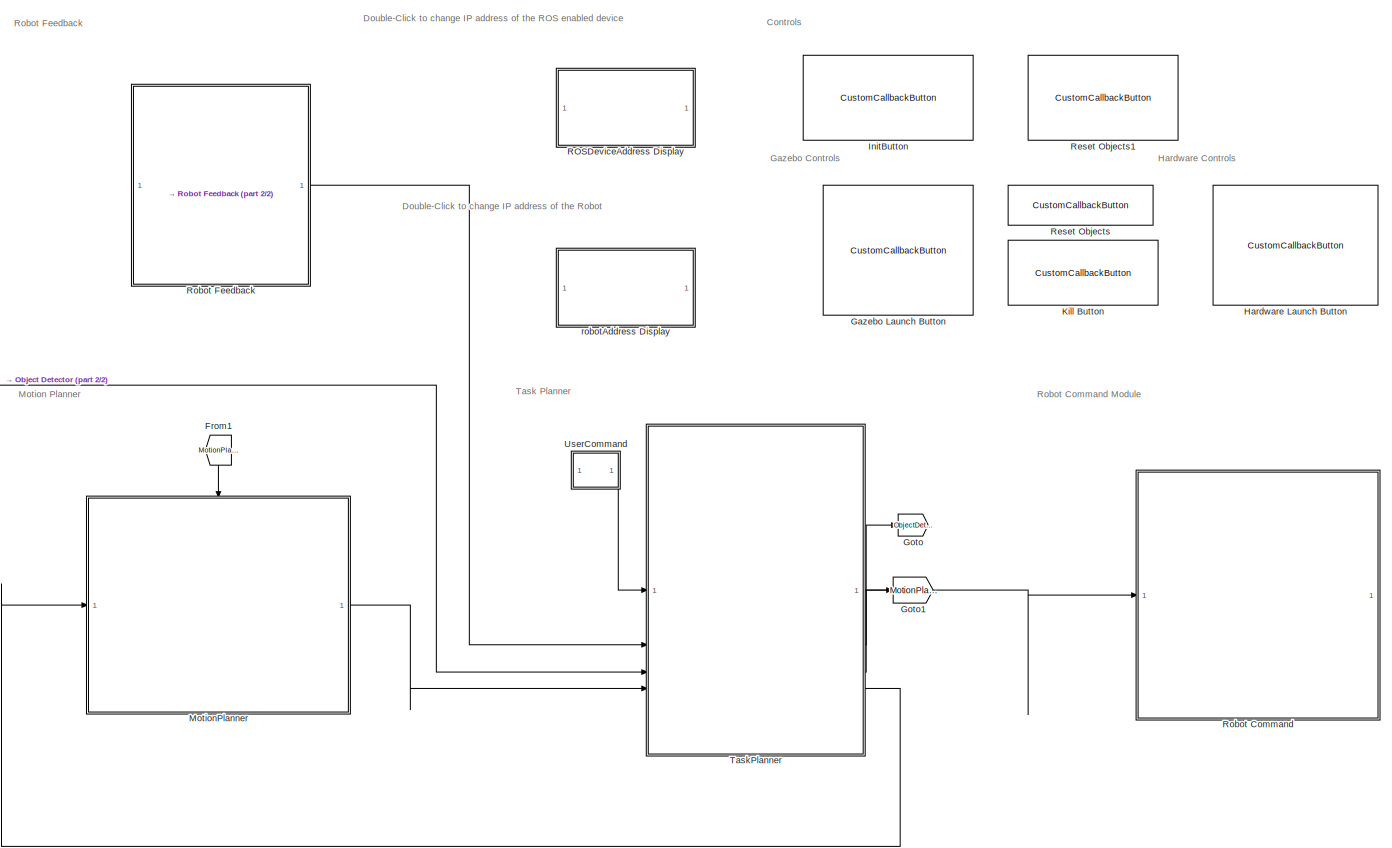
[diagram: root canvas - part 1/2, center side, full height]
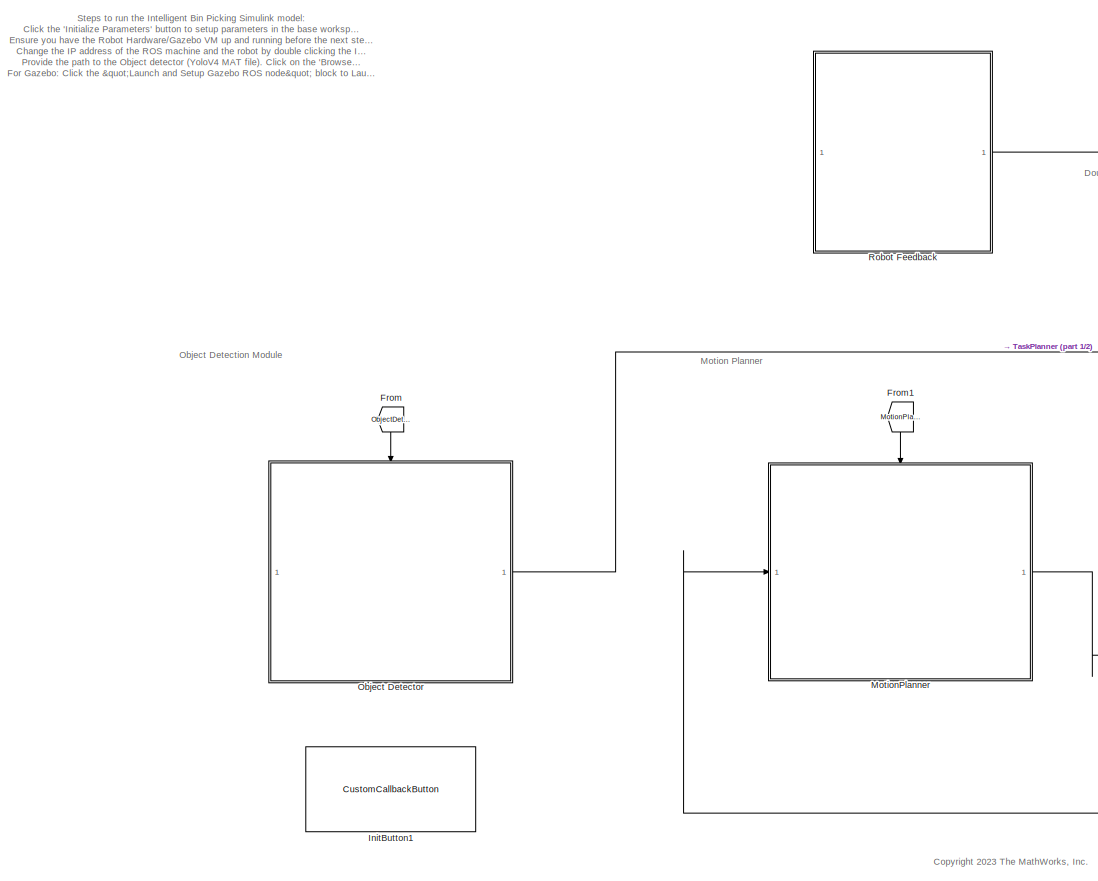
[diagram: root canvas - part 2/2, left side, full height]
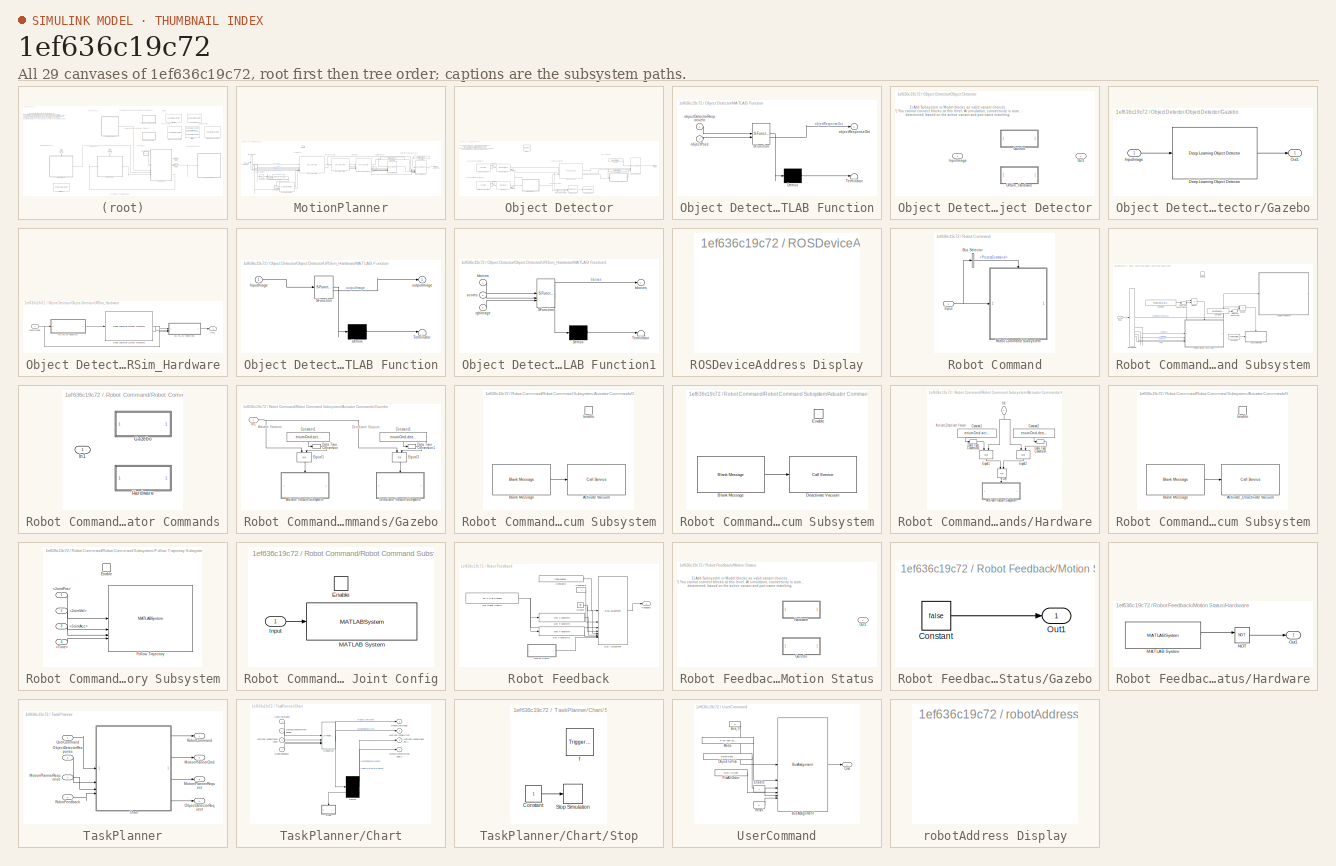
[diagram: thumbnail index - all 29 canvases of the model, root first then tree order]
MODEL slx_1ef636c19c72
KIND model
CONFIG AbsTol = auto
CONFIG EnableMultiTasking = off
CONFIG FixedStep = 0.1
CONFIG MaxStep = auto
CONFIG MinStep = auto
CONFIG PreLoadFcn = initializeParametersForBinPickingSimulationSL;\n
CONFIG RelTol = 1e-3
CONFIG SampleTimeConstraint = Unconstrained
CONFIG SolverName = FixedStepAuto
CONFIG StartTime = 0.0
CONFIG StopTime = 100
WORKSPACE source: mxarray member
WORKSPACE SL_ROS_VariableLengthArrays_MaxSizes: object (value not decoded)
BLOCK [From] From
  GotoTag = ObjectDetectorRequest_GoTo
  NameLocation = left
BLOCK [From] From1
  GotoTag = MotionPlanner_GoTo
  NameLocation = left
BLOCK [CustomCallbackButton] Gazebo Launch Button
  Configuration = {"components":[{"name":"BackgroundImageComponent","settings":{"image":{"size":[0,0],"src":"default","srcOrientation":"Right"},"position":[0,0,1,1]}},{"name":"ButtonStateComponent","settings":{"buttonType":"momentary","clickFcn":"LaunchGazeboAndSetupCollisionEnv;\ndisp(\"Gazebo launched and scene setup\")\n","onValue":1,"position":[0,0,1,1],"pressDelay":"500","pressFcn":"","repeatInterval":"0","sta...<+2247ch>
  CustomBackgroundColor = {"color":[0.6196078431372549,0.8392156862745098,0.9490196078431372],"show":true}
BLOCK [Goto] Goto
  GotoTag = ObjectDetectorRequest_GoTo
  IconDisplay = Signal name
BLOCK [Goto] Goto1
  GotoTag = MotionPlanner_GoTo
  IconDisplay = Signal name
BLOCK [CustomCallbackButton] Hardware Launch Button
  Configuration = {"components":[{"name":"BackgroundImageComponent","settings":{"image":{"size":[0,0],"src":"default","srcOrientation":"Right"},"position":[0,0,1,1]}},{"name":"ButtonStateComponent","settings":{"buttonType":"momentary","clickFcn":"getGripperType;\n\nConnectToRobotROS;\n\ndisp(\"Setup complete for Robot hardware\")\n","onValue":1,"position":[0,0,1,1],"pressDelay":"500","pressFcn":"","repeatInterval":...<+2279ch>
  CustomBackgroundColor = {"color":[0.6196078431372549,0.8392156862745098,0.9490196078431372],"show":true}
BLOCK [CustomCallbackButton] InitButton
  Configuration = {"components":[{"name":"BackgroundImageComponent","settings":{"image":{"size":[0,0],"src":"default","srcOrientation":"Right"},"position":[0,0,1,1]}},{"name":"ButtonStateComponent","settings":{"buttonType":"momentary","clickFcn":"%%\ninitializeParametersForBinPickingSimulationSL;\ndisp('Parameters Initialized')","onValue":1,"position":[0,0,1,1],"pressDelay":"500","pressFcn":"","repeatInterval":"0",...<+2173ch>
  CustomBackgroundColor = {"color":[0.6196078431372549,0.8392156862745098,0.9490196078431372],"show":true}
BLOCK [CustomCallbackButton] InitButton1
  Configuration = {"components":[{"name":"BackgroundImageComponent","settings":{"image":{"size":[0,0],"src":"default","srcOrientation":"Right"},"position":[0,0,1,1]}},{"name":"ButtonStateComponent","settings":{"buttonType":"momentary","clickFcn":"selectDetectorMATFile","onValue":1,"position":[0,0,1,1],"pressDelay":"500","pressFcn":"","repeatInterval":"0","states":[{"horizontalAlignment":"center","image":{"position"...<+2156ch>
  CustomBackgroundColor = {"color":[0.6196078431372549,0.8392156862745098,0.9490196078431372],"show":true}
BLOCK [CustomCallbackButton] Kill Button
  Configuration = {"components":[{"name":"BackgroundImageComponent","settings":{"image":{"size":[0,0],"src":"default","srcOrientation":"Right"},"position":[0,0,1,1]}},{"name":"ButtonStateComponent","settings":{"buttonType":"momentary","clickFcn":"clear ur\nurHandleClass.manageURNodeMap(ROSDeviceAddress,[],'remove')\nif exist('device', 'var')\n    system(device,'killall -9 rosmaster');\nend","onValue":1,"position":[...<+2236ch>
  CustomBackgroundColor = {"color":[0.9411764705882353,0.6313725490196078,0.6313725490196078],"show":true}
BLOCK [SubSystem] MotionPlanner
BLOCK [BusAssignment] MotionPlanner/Bus Assignment
  AssignedSignals = RequestID,Status,JointTrajectory,IsPosValid,IsVelValid,IsAccValid
BLOCK [BusAssignment] MotionPlanner/Bus Assignment1
  AssignedSignals = NumPoints,Time,JointPos,JointVel,JointAcc
BLOCK [BusSelector] MotionPlanner/Bus Selector
  OutputSignals = RequestID,Tasks,InitialPositions,NumObstacleObjects,ObstacleObjects
BLOCK [BusSelector] MotionPlanner/Bus Selector1
  OutputSignals = eulZYX,p
BLOCK [Inport] MotionPlanner/Command
  OutDataTypeStr = Bus: BUS_motion_planner_cmd
BLOCK [Constant] MotionPlanner/Constant
  NameLocation = top
  OutDataTypeStr = Bus: BUS_motion_planner_response
  Value = motionPlannerResponseInitValue
BLOCK [Constant] MotionPlanner/Constant1
  NameLocation = top
  OutDataTypeStr = Bus: BUS_joint_trajectory
  Value = motionPlannerResponseInitValue.JointTrajectory
BLOCK [Constant] MotionPlanner/Constant2
  Value = [1 1 1 1 1 1]
BLOCK [Reference] MotionPlanner/Coordinate Transformation Conversion  REF=robotcorelib/Coordinate Transformation Conversion
  LibrarySourceBlock = robotutilslib/Coordinate Transformation Conversion
  SourceBlock = robotcorelib/Coordinate Transformation Conversion
  SourceType = robotics.slcore.internal.block.CoordinateTransformationConversion
BLOCK [Reference] MotionPlanner/Inverse Kinematics  REF=robotmaniplib/Inverse Kinematics
  SourceBlock = robotmaniplib/Inverse Kinematics
  SourceType = Inverse Kinematics
BLOCK [MATLABSystem] MotionPlanner/MATLAB System
  BinCenterPosition = binCenterPosition
  BinHeight = binHeight
  BinLength = binLength
  BinRotation = binRotation
  BinWidth = binWidth
  GripperType = gripperType
  HomePosition = retractHomePosition
  IsMEXed = off
  MaskDisplay = disp('MotionPlannerCHOMPSO');\nport_label('input',1,'requestID');\nport_label('input',2,'tasks');\nport_label('input',3,'q0');\nport_label('input',4,'numObstacles');\nport_label('input',5,'obstacles');\nport_label('input',6,'configSoln');\nport_label('input',7,'configSolnInfo');\nport_label('output',1,'reqID');\nport_label('output',2,'path');
  MaskType = MotionPlannerCHOMPSO
  SimulateUsing = Interpreted execution
  System = MotionPlannerCHOMPSO
  Target = targetEnv
BLOCK [MATLABSystem] MotionPlanner/MATLAB System1
  AccelLimits = accellimits
  MaskDisplay = disp('ContopptrajSO');\nport_label('input',1,'planPath');\nport_label('output',1,'q');\nport_label('output',2,'qd');\nport_label('output',3,'qdd');\nport_label('output',4,'t');
  MaskType = ContopptrajSO
  NumSamples = 50
  SimulateUsing = Code generation
  System = ContopptrajSO
  VelocityLimits = vellimits
BLOCK [MATLABSystem] MotionPlanner/MATLAB System2
  MaskDisplay = disp('InterpSO');\nport_label('input',1,'q');\nport_label('input',2,'qd');\nport_label('input',3,'qdd');\nport_label('input',4,'t');\nport_label('output',1,'status');\nport_label('output',2,'numPoints');\nport_label('output',3,'time');\nport_label('output',4,'jointPos');\nport_label('output',5,'jointVel');\nport_label('output',6,'jointAcc');\nport_label('output',7,'isValid');
  MaskType = InterpSO
  MaxNumPoints = maxNumPoints
  SimulateUsing = Code generation
  System = InterpSO
  trajectorySampleTime = 1/400
BLOCK [Outport] MotionPlanner/Response
  InitialOutput = motionPlannerResponseInitValue
  OutDataTypeStr = Bus: BUS_motion_planner_response
  VectorParamsAs1DForOutWhenUnconnected = off
BLOCK [Selector] MotionPlanner/Selector
  IndexOptions = Index vector (dialog)
  Indices = 1
  InputPortWidth = 20
  OutputSizes = 1
BLOCK [TriggerPort] MotionPlanner/function
  PortDimensions = 1
  StatesWhenEnabling = held
  TriggerType = function-call
  VariantControl = Variant
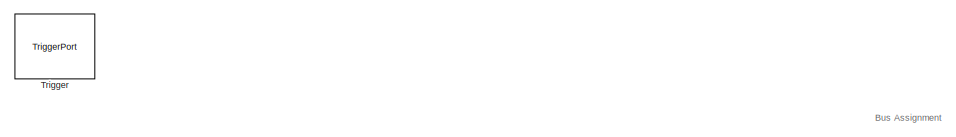
[diagram: Object Detector - part 1/3, top center region]
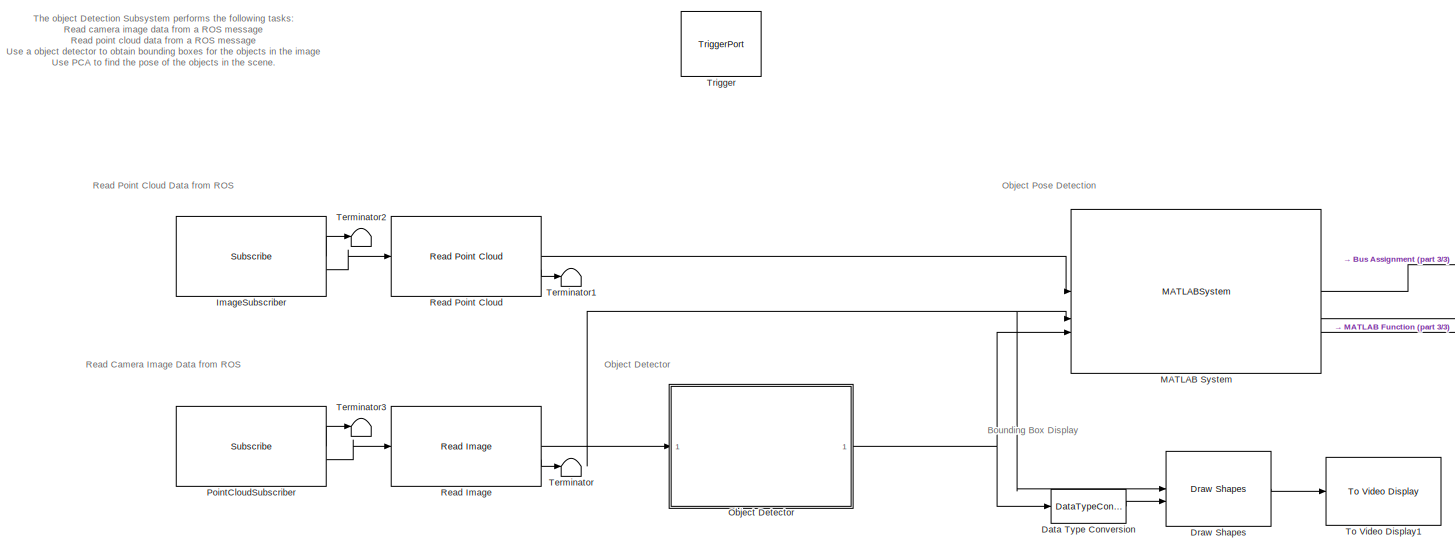
[diagram: Object Detector - part 2/3, center side, full height]
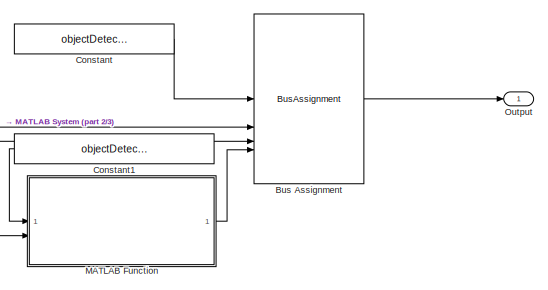
[diagram: Object Detector - part 3/3, middle right region]
BLOCK [SubSystem] Object Detector
  TreatAsAtomicUnit = on
BLOCK [BusAssignment] Object Detector/Bus Assignment
  AssignedSignals = Status,NumObjects,Objects
BLOCK [Constant] Object Detector/Constant
  OutDataTypeStr = Bus: BUS_object_detector_response
  Value = objectDetectorResponseInitValue
BLOCK [Constant] Object Detector/Constant1
  NameLocation = top
  OutDataTypeStr = Bus: BUS_object_detector_response
  Value = objectDetectorResponseInitValue
BLOCK [DataTypeConversion] Object Detector/Data Type Conversion
  OutDataTypeStr = int32
  RndMeth = Floor
  SaturateOnIntegerOverflow = off
BLOCK [Reference] Object Detector/Draw Shapes  REF=visiontextngfix/Draw Shapes
  SourceBlock = visiontextngfix/Draw Shapes
  SourceType = Draw Shapes
BLOCK [Reference] Object Detector/ImageSubscriber  REF=robotlib/Subscribe
  SourceBlock = robotlib/Subscribe
  SourceType = ROS Subscribe
BLOCK [SubSystem] Object Detector/MATLAB Function
  ErrorFcn = Stateflow.Translate.translate
  LibrarySourceBlock = simulink/User-Defined\nFunctions/MATLAB Function
  PermitHierarchicalResolution = ExplicitOnly
  SFBlockType = MATLAB Function
  TreatAsAtomicUnit = on
BLOCK [Demux] Object Detector/MATLAB Function/ Demux 
  Outputs = 1
BLOCK [S-Function] Object Detector/MATLAB Function/ SFunction 
  EnableBusSupport = on
  FunctionName = sf_sfun
  PortCounts = [2 2]
  SFcnIsStateOwnerBlock = off
  SFunctionDeploymentMode = off
  Tag = Stateflow S-Function 5
BLOCK [Terminator] Object Detector/MATLAB Function/ Terminator 
BLOCK [Inport] Object Detector/MATLAB Function/objectDetectorResponseIn
BLOCK [Inport] Object Detector/MATLAB Function/objectPose
  Port = 2
BLOCK [Outport] Object Detector/MATLAB Function/objectResponseOut
BLOCK [MATLABSystem] Object Detector/MATLAB System
  MaskDisplay = disp('PerceptionAndLocalizationSO');\nport_label('input',1,'ptCloudXYZ');\nport_label('input',2,'rgbImage');\nport_label('input',3,'bboxes');\nport_label('output',1,'status');\nport_label('output',2,'numObjects');\nport_label('output',3,'objectPose');
  MaskType = PerceptionAndLocalizationSO
  PlaneThickness = PlaneThickness
  SimulateUsing = Interpreted execution
  System = PerceptionAndLocalizationSO
  gridDownsample = gridDownsample
  maxPlaneTilt = maxPlaneTilt
  maxVisionObjects = maxVisionObjects
  normalvector = normalvector
  posDepthCam = posDepthCam
  rotationFromRobotToCam = rotationFromRobotToCam
BLOCK [SubSystem] Object Detector/Object Detector
  Variant = on
BLOCK [SubSystem] Object Detector/Object Detector/Gazebo
  VariantControl = targetEnv == TargetEnvs.Gazebo
BLOCK [Reference] Object Detector/Object Detector/Gazebo/Deep Learning Object Detector  REF=visionanalysis/Deep Learning Object Detector
  SourceBlock = visionanalysis/Deep Learning Object Detector
  SourceType = Deep Learning Object Detector
BLOCK [Inport] Object Detector/Object Detector/Gazebo/InputImage
BLOCK [Outport] Object Detector/Object Detector/Gazebo/Out1
BLOCK [Inport] Object Detector/Object Detector/InputImage
BLOCK [Outport] Object Detector/Object Detector/Out1
BLOCK [SubSystem] Object Detector/Object Detector/URSim_Hardware
  VariantControl = targetEnv == TargetEnvs.URSim || targetEnv == TargetEnvs.Hardware
BLOCK [Reference] Object Detector/Object Detector/URSim_Hardware/Deep Learning Object Detector  REF=visionanalysis/Deep Learning Object Detector
  SourceBlock = visionanalysis/Deep Learning Object Detector
  SourceType = Deep Learning Object Detector
BLOCK [Inport] Object Detector/Object Detector/URSim_Hardware/InputImage
BLOCK [SubSystem] Object Detector/Object Detector/URSim_Hardware/MATLAB Function
  ErrorFcn = Stateflow.Translate.translate
  LibrarySourceBlock = simulink/User-Defined\nFunctions/MATLAB Function
  PermitHierarchicalResolution = ExplicitOnly
  SFBlockType = MATLAB Function
  TreatAsAtomicUnit = on
BLOCK [Demux] Object Detector/Object Detector/URSim_Hardware/MATLAB Function/ Demux 
  Outputs = 1
BLOCK [S-Function] Object Detector/Object Detector/URSim_Hardware/MATLAB Function/ SFunction 
  EnableBusSupport = on
  FunctionName = sf_sfun
  PortCounts = [1 2]
  SFcnIsStateOwnerBlock = off
  SFunctionDeploymentMode = off
  Tag = Stateflow S-Function 1
BLOCK [Terminator] Object Detector/Object Detector/URSim_Hardware/MATLAB Function/ Terminator 
BLOCK [Inport] Object Detector/Object Detector/URSim_Hardware/MATLAB Function/InputImage
BLOCK [Outport] Object Detector/Object Detector/URSim_Hardware/MATLAB Function/outputImage
BLOCK [SubSystem] Object Detector/Object Detector/URSim_Hardware/MATLAB Function1
  ErrorFcn = Stateflow.Translate.translate
  LibrarySourceBlock = simulink/User-Defined\nFunctions/MATLAB Function
  PermitHierarchicalResolution = ExplicitOnly
  SFBlockType = MATLAB Function
  TreatAsAtomicUnit = on
BLOCK [Demux] Object Detector/Object Detector/URSim_Hardware/MATLAB Function1/ Demux 
  Outputs = 1
BLOCK [S-Function] Object Detector/Object Detector/URSim_Hardware/MATLAB Function1/ SFunction 
  EnableBusSupport = on
  FunctionName = sf_sfun
  PortCounts = [3 2]
  SFcnIsStateOwnerBlock = off
  SFunctionDeploymentMode = off
  Tag = Stateflow S-Function 3
BLOCK [Terminator] Object Detector/Object Detector/URSim_Hardware/MATLAB Function1/ Terminator 
BLOCK [Outport] Object Detector/Object Detector/URSim_Hardware/MATLAB Function1/bboxes
BLOCK [Inport] Object Detector/Object Detector/URSim_Hardware/MATLAB Function1/bboxes 
BLOCK [Inport] Object Detector/Object Detector/URSim_Hardware/MATLAB Function1/rgbImage
  Port = 3
BLOCK [Inport] Object Detector/Object Detector/URSim_Hardware/MATLAB Function1/scores
  Port = 2
BLOCK [Outport] Object Detector/Object Detector/URSim_Hardware/Out1
BLOCK [Outport] Object Detector/Output
BLOCK [Reference] Object Detector/PointCloudSubscriber  REF=robotlib/Subscribe
  SourceBlock = robotlib/Subscribe
  SourceType = ROS Subscribe
BLOCK [Reference] Object Detector/Read Image  REF=robotlib/Read Image
  SourceBlock = robotlib/Read Image
  SourceType = ros.slros.internal.block.ReadImage
BLOCK [Reference] Object Detector/Read Point Cloud  REF=robotlib/Read Point Cloud
  SourceBlock = robotlib/Read Point Cloud
  SourceType = ros.slros.internal.block.ReadPointCloud
BLOCK [Terminator] Object Detector/Terminator
BLOCK [Terminator] Object Detector/Terminator1
BLOCK [Terminator] Object Detector/Terminator2
BLOCK [Terminator] Object Detector/Terminator3
BLOCK [Reference] Object Detector/To Video Display1  REF=visionsinks/To Video Display
  SourceBlock = visionsinks/To Video Display
  SourceType = To Video Display
BLOCK [TriggerPort] Object Detector/Trigger
  StatesWhenEnabling = held
  TriggerType = function-call
  VariantControl = (inherit)
BLOCK [SubSystem] ROSDeviceAddress Display
  OpenFcn = RequestIP;
BLOCK [CustomCallbackButton] Reset Objects
  Configuration = {"components":[{"name":"BackgroundImageComponent","settings":{"image":{"size":[0,0],"src":"default","srcOrientation":"Right"},"position":[0,0,1,1]}},{"name":"ButtonStateComponent","settings":{"buttonType":"momentary","clickFcn":"ResetObjectsGazebo;\ndisp(\"Object positions and collision environment reset\")","onValue":1,"position":[0,0,1,1],"pressDelay":"500","pressFcn":"","repeatInterval":"0","st...<+2074ch>
  CustomBackgroundColor = {"color":[0.6196078431372549,0.8392156862745098,0.9490196078431372],"show":true}
BLOCK [CustomCallbackButton] Reset Objects1
  Configuration = {"components":[{"name":"BackgroundImageComponent","settings":{"image":{"size":[0,0],"src":"default","srcOrientation":"Right"},"position":[0,0,1,1]}},{"name":"ButtonStateComponent","settings":{"buttonType":"momentary","clickFcn":"urHandleClass.manageURNodeMap(ROSDeviceAddress,[],'remove');\nif exist('ur', 'var')\n    clear ur\nend\nur = universalrobot(ROSDeviceAddress,'RigidBodyTree',ur5e);\nsendJo...<+2390ch>
  CustomBackgroundColor = {"color":[0.615686274509804,0.8392156862745098,0.9490196078431372],"show":true}
BLOCK [SubSystem] Robot Command
BLOCK [BusSelector] Robot Command/Bus Selector
  OutputSignals = ProcessCommand
BLOCK [Inport] Robot Command/Input
BLOCK [SubSystem] Robot Command/Robot Command Subsystem
  TreatAsAtomicUnit = on
BLOCK [SubSystem] Robot Command/Robot Command Subsystem/Actuator Commands
  Variant = on
BLOCK [SubSystem] Robot Command/Robot Command Subsystem/Actuator Commands/Gazebo
  VariantControl = targetEnv == TargetEnvs.Gazebo
BLOCK [SubSystem] Robot Command/Robot Command Subsystem/Actuator Commands/Gazebo/Activate Vaccum Subsystem
BLOCK [Reference] Robot Command/Robot Command Subsystem/Actuator Commands/Gazebo/Activate Vaccum Subsystem/Activate Vacuum  REF=robotlib/Call Service
  SourceBlock = robotlib/Call Service
  SourceType = ROS Call Service
BLOCK [Reference] Robot Command/Robot Command Subsystem/Actuator Commands/Gazebo/Activate Vaccum Subsystem/Blank Message  REF=robotlib/Blank Message
  SourceBlock = robotlib/Blank Message
  SourceType = ROS Blank Message
BLOCK [EnablePort] Robot Command/Robot Command Subsystem/Actuator Commands/Gazebo/Activate Vaccum Subsystem/Enable
BLOCK [Constant] Robot Command/Robot Command Subsystem/Actuator Commands/Gazebo/Constant1
  NameLocation = left
  Value = enumCmd.activate_vacuum
BLOCK [Constant] Robot Command/Robot Command Subsystem/Actuator Commands/Gazebo/Constant2
  NameLocation = left
  Value = enumCmd.deactivate_vacuum
BLOCK [DataTypeConversion] Robot Command/Robot Command Subsystem/Actuator Commands/Gazebo/Data Type Conversion
  OutDataTypeStr = int32
  RndMeth = Floor
  SaturateOnIntegerOverflow = off
BLOCK [DataTypeConversion] Robot Command/Robot Command Subsystem/Actuator Commands/Gazebo/Data Type Conversion1
  OutDataTypeStr = int32
  RndMeth = Floor
  SaturateOnIntegerOverflow = off
BLOCK [SubSystem] Robot Command/Robot Command Subsystem/Actuator Commands/Gazebo/Deactivate Vaccum Subsystem
BLOCK [Reference] Robot Command/Robot Command Subsystem/Actuator Commands/Gazebo/Deactivate Vaccum Subsystem/Blank Message  REF=robotlib/Blank Message
  SourceBlock = robotlib/Blank Message
  SourceType = ROS Blank Message
BLOCK [Reference] Robot Command/Robot Command Subsystem/Actuator Commands/Gazebo/Deactivate Vaccum Subsystem/Deactivate Vacuum  REF=robotlib/Call Service
  SourceBlock = robotlib/Call Service
  SourceType = ROS Call Service
BLOCK [EnablePort] Robot Command/Robot Command Subsystem/Actuator Commands/Gazebo/Deactivate Vaccum Subsystem/Enable
BLOCK [RelationalOperator] Robot Command/Robot Command Subsystem/Actuator Commands/Gazebo/Equal1
  InputSameDT = off
  NameLocation = left
  Operator = ==
  OutDataTypeStr = boolean
  RndMeth = Simplest
BLOCK [RelationalOperator] Robot Command/Robot Command Subsystem/Actuator Commands/Gazebo/Equal2
  InputSameDT = off
  NameLocation = left
  Operator = ==
  OutDataTypeStr = boolean
  RndMeth = Simplest
BLOCK [Inport] Robot Command/Robot Command Subsystem/Actuator Commands/Gazebo/In1
BLOCK [SubSystem] Robot Command/Robot Command Subsystem/Actuator Commands/Hardware
  VariantControl = targetEnv == TargetEnvs.Hardware
BLOCK [SubSystem] Robot Command/Robot Command Subsystem/Actuator Commands/Hardware/Activate Vaccum Subsystem
BLOCK [Reference] Robot Command/Robot Command Subsystem/Actuator Commands/Hardware/Activate Vaccum Subsystem/Activate_Deactivate Vacuum  REF=robotlib/Call Service
  SourceBlock = robotlib/Call Service
  SourceType = ROS Call Service
BLOCK [Reference] Robot Command/Robot Command Subsystem/Actuator Commands/Hardware/Activate Vaccum Subsystem/Blank Message  REF=robotlib/Blank Message
  SourceBlock = robotlib/Blank Message
  SourceType = ROS Blank Message
BLOCK [EnablePort] Robot Command/Robot Command Subsystem/Actuator Commands/Hardware/Activate Vaccum Subsystem/Enable
BLOCK [Constant] Robot Command/Robot Command Subsystem/Actuator Commands/Hardware/Constant1
  NameLocation = left
  Value = enumCmd.activate_vacuum
BLOCK [Constant] Robot Command/Robot Command Subsystem/Actuator Commands/Hardware/Constant2
  NameLocation = left
  Value = enumCmd.deactivate_vacuum
BLOCK [DataTypeConversion] Robot Command/Robot Command Subsystem/Actuator Commands/Hardware/Data Type Conversion
  OutDataTypeStr = int32
  RndMeth = Floor
  SaturateOnIntegerOverflow = off
BLOCK [DataTypeConversion] Robot Command/Robot Command Subsystem/Actuator Commands/Hardware/Data Type Conversion1
  OutDataTypeStr = int32
  RndMeth = Floor
  SaturateOnIntegerOverflow = off
BLOCK [RelationalOperator] Robot Command/Robot Command Subsystem/Actuator Commands/Hardware/Equal1
  InputSameDT = off
  NameLocation = left
  Operator = ==
  OutDataTypeStr = boolean
  RndMeth = Simplest
BLOCK [RelationalOperator] Robot Command/Robot Command Subsystem/Actuator Commands/Hardware/Equal2
  InputSameDT = off
  NameLocation = left
  Operator = ==
  OutDataTypeStr = boolean
  RndMeth = Simplest
BLOCK [Inport] Robot Command/Robot Command Subsystem/Actuator Commands/Hardware/In1
  NameLocation = left
BLOCK [Logic] Robot Command/Robot Command Subsystem/Actuator Commands/Hardware/OR
  AllPortsSameDT = off
  NameLocation = left
  Operator = OR
  OutDataTypeStr = boolean
BLOCK [Inport] Robot Command/Robot Command Subsystem/Actuator Commands/In1
BLOCK [BusSelector] Robot Command/Robot Command Subsystem/Bus Selector
  OutputSignals = CommandToProcess,JointTrajectory.JointPos,JointTrajectory.JointVel,JointTrajectory.JointAcc,JointTrajectory.Time
BLOCK [Constant] Robot Command/Robot Command Subsystem/Constant
  Value = enumCmd.precomputed_joint_trj
BLOCK [Constant] Robot Command/Robot Command Subsystem/Constant1
  Value = enumCmd.send_to_home
BLOCK [Constant] Robot Command/Robot Command Subsystem/Constant2
  Value = homePosition
BLOCK [DataTypeConversion] Robot Command/Robot Command Subsystem/Data Type Conversion
  OutDataTypeStr = int32
  RndMeth = Floor
  SaturateOnIntegerOverflow = off
BLOCK [DataTypeConversion] Robot Command/Robot Command Subsystem/Data Type Conversion1
  OutDataTypeStr = int32
  RndMeth = Floor
  SaturateOnIntegerOverflow = off
BLOCK [EnablePort] Robot Command/Robot Command Subsystem/Enable
BLOCK [RelationalOperator] Robot Command/Robot Command Subsystem/Equal
  InputSameDT = off
  Operator = ==
  OutDataTypeStr = boolean
  RndMeth = Simplest
BLOCK [RelationalOperator] Robot Command/Robot Command Subsystem/Equal1
  InputSameDT = off
  Operator = ==
  OutDataTypeStr = boolean
  RndMeth = Simplest
BLOCK [SubSystem] Robot Command/Robot Command Subsystem/Follow Trajectory Subsystem
BLOCK [Inport] Robot Command/Robot Command Subsystem/Follow Trajectory Subsystem/<JointAcc>
  Port = 3
BLOCK [Inport] Robot Command/Robot Command Subsystem/Follow Trajectory Subsystem/<JointPos>
BLOCK [Inport] Robot Command/Robot Command Subsystem/Follow Trajectory Subsystem/<JointVel>
  Port = 2
BLOCK [Inport] Robot Command/Robot Command Subsystem/Follow Trajectory Subsystem/<Time>
  Port = 4
BLOCK [EnablePort] Robot Command/Robot Command Subsystem/Follow Trajectory Subsystem/Enable
BLOCK [MATLABSystem] Robot Command/Robot Command Subsystem/Follow Trajectory Subsystem/Follow Trajectory
  MaskDisplay = disp('FollowTrajectorySO');\nport_label('input',1,'q_interp');\nport_label('input',2,'qd_interp');\nport_label('input',3,'qdd_interp');\nport_label('input',4,'tSample');
  MaskType = FollowTrajectorySO
  ROSDeviceAddress = ROSDeviceAddress
  SimulateUsing = Interpreted execution
  System = FollowTrajectorySO
BLOCK [Inport] Robot Command/Robot Command Subsystem/Input
BLOCK [SubSystem] Robot Command/Robot Command Subsystem/Send Joint Config
  TreatAsAtomicUnit = on
BLOCK [EnablePort] Robot Command/Robot Command Subsystem/Send Joint Config/Enable
BLOCK [Inport] Robot Command/Robot Command Subsystem/Send Joint Config/Input
BLOCK [MATLABSystem] Robot Command/Robot Command Subsystem/Send Joint Config/MATLAB System
  MaskDisplay = disp('SendJointConfigSO');\nport_label('input',1,'config');
  MaskType = SendJointConfigSO
  ROSDeviceAddress = ROSDeviceAddress
  SimulateUsing = Interpreted execution
  System = SendJointConfigSO
BLOCK [SubSystem] Robot Feedback
  NameLocation = top
BLOCK [BusAssignment] Robot Feedback/Bus Assignment
  AssignedSignals = IsValid,JointPos,JointVel,JointCurrent,TooltipTransform,RGBCameraTransform,IsMoving
BLOCK [Constant] Robot Feedback/Constant2
  OutDataTypeStr = Bus: BUS_robot_feedback
  Value = robotFeedbackInitValue
BLOCK [Constant] Robot Feedback/Constant3
  OutDataTypeStr = boolean
BLOCK [Outport] Robot Feedback/Feedback
  OutDataTypeStr = Bus: BUS_robot_feedback
  VectorParamsAs1DForOutWhenUnconnected = off
BLOCK [MATLABSystem] Robot Feedback/Get Robot Config
  MaskDisplay = disp('GetConfigURSO');\nport_label('output',1,'config');
  MaskType = GetConfigURSO
  ROSDeviceAddress = ROSDeviceAddress
  SimulateUsing = Interpreted execution
  System = GetConfigURSO
BLOCK [Reference] Robot Feedback/Get Transform  REF=robotmaniplib/Get Transform
  SourceBlock = robotmaniplib/Get Transform
  SourceType = Get Transform
BLOCK [Reference] Robot Feedback/Get Transform1  REF=robotmaniplib/Get Transform
  SourceBlock = robotmaniplib/Get Transform
  SourceType = Get Transform
BLOCK [Ground] Robot Feedback/Ground
BLOCK [SubSystem] Robot Feedback/Motion Status
  Variant = on
BLOCK [SubSystem] Robot Feedback/Motion Status/Gazebo
  VariantControl = targetEnv == TargetEnvs.Gazebo
BLOCK [Constant] Robot Feedback/Motion Status/Gazebo/Constant
  Value = false
BLOCK [Outport] Robot Feedback/Motion Status/Gazebo/Out1
BLOCK [SubSystem] Robot Feedback/Motion Status/Hardware
  VariantControl = targetEnv == TargetEnvs.Hardware
BLOCK [MATLABSystem] Robot Feedback/Motion Status/Hardware/MATLAB System
  MaskDisplay = disp('MotionStatusUR');\nport_label('output',1,'success');
  MaskType = MotionStatusUR
  ROSDeviceAddress = ROSDeviceAddress
  System = MotionStatusUR
BLOCK [Logic] Robot Feedback/Motion Status/Hardware/NOT
  AllPortsSameDT = off
  Operator = NOT
  OutDataTypeStr = boolean
BLOCK [Outport] Robot Feedback/Motion Status/Hardware/Out1
BLOCK [Outport] Robot Feedback/Motion Status/Out1
BLOCK [SubSystem] TaskPlanner
  SystemSampleTime = TaskPlannerSampleTime
  TreatAsAtomicUnit = on
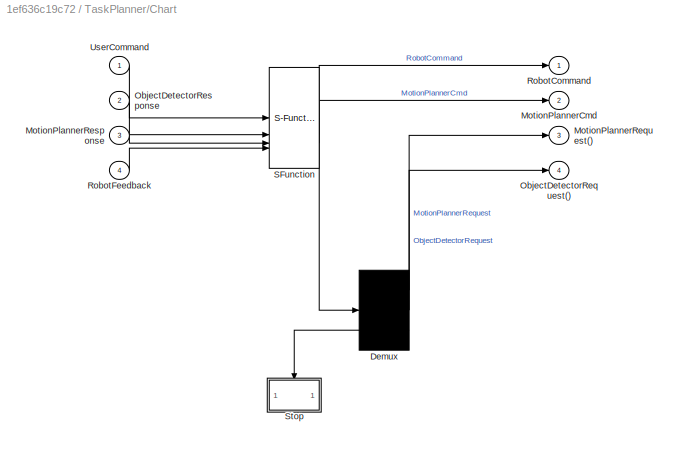
BLOCK [SubSystem] TaskPlanner/Chart
  ErrorFcn = Stateflow.Translate.translate
  PermitHierarchicalResolution = ExplicitOnly
  SFBlockType = Chart
  TreatAsAtomicUnit = on
BLOCK [Demux] TaskPlanner/Chart/ Demux 
  Outputs = 3
BLOCK [S-Function] TaskPlanner/Chart/ SFunction 
  EnableBusSupport = on
  FunctionName = sf_sfun
  Parameters = binCenterPosition,isSingleDetection,maxVisionObjects,motionPlannerCmdInitValue,posTargetError,robotCommandInitValue,targetEnv
  PortCounts = [4 3]
  SFcnIsStateOwnerBlock = off
  SFunctionDeploymentMode = off
  Tag = Stateflow S-Function 9
BLOCK [Outport] TaskPlanner/Chart/MotionPlannerCmd
  Port = 2
  VectorParamsAs1DForOutWhenUnconnected = off
BLOCK [Outport] TaskPlanner/Chart/MotionPlannerRequest()
  Port = 3
  VectorParamsAs1DForOutWhenUnconnected = off
BLOCK [Inport] TaskPlanner/Chart/MotionPlannerResponse
  Port = 3
BLOCK [Outport] TaskPlanner/Chart/ObjectDetectorRequest()
  Port = 4
  VectorParamsAs1DForOutWhenUnconnected = off
BLOCK [Inport] TaskPlanner/Chart/ObjectDetectorResponse
  Port = 2
BLOCK [Outport] TaskPlanner/Chart/RobotCommand
  VectorParamsAs1DForOutWhenUnconnected = off
BLOCK [Inport] TaskPlanner/Chart/RobotFeedback
  Port = 4
BLOCK [SubSystem] TaskPlanner/Chart/Stop
  PreDeleteFcn = Stateflow.SLINSF.SimulinkMan.removePreDeleteFcn
  UndoDeleteFcn = Stateflow.SLINSF.SimulinkMan.restorePreDeleteFcn
BLOCK [Constant] TaskPlanner/Chart/Stop/Constant
BLOCK [Stop] TaskPlanner/Chart/Stop/Stop Simulation
BLOCK [TriggerPort] TaskPlanner/Chart/Stop/f
  CopyFcn = Stateflow.SLINSF.SimulinkMan.removeBlockPreDeleteFcn
  PreDeleteFcn = Stateflow.SLINSF.SimulinkMan.unsafePredeleteFcn
  StatesWhenEnabling = held
  TriggerType = function-call
  VariantControl = (inherit)
BLOCK [Inport] TaskPlanner/Chart/UserCommand
BLOCK [Outport] TaskPlanner/MotionPlannerCmd
  OutDataTypeStr = Bus: BUS_motion_planner_cmd
  Port = 4
  VectorParamsAs1DForOutWhenUnconnected = off
BLOCK [Outport] TaskPlanner/MotionPlannerRequest
  Port = 3
  VectorParamsAs1DForOutWhenUnconnected = off
BLOCK [Inport] TaskPlanner/MotionPlannerResponse
  Port = 4
BLOCK [Outport] TaskPlanner/ObjectDetectorRequest
  Port = 2
  VectorParamsAs1DForOutWhenUnconnected = off
BLOCK [Inport] TaskPlanner/ObjectDetectorResponse
  OutDataTypeStr = Bus: BUS_object_detector_response
  Port = 3
BLOCK [Outport] TaskPlanner/RobotCommand
  OutDataTypeStr = Bus: BUS_robot_command
  VectorParamsAs1DForOutWhenUnconnected = off
BLOCK [Inport] TaskPlanner/RobotFeedback
  OutDataTypeStr = Bus: BUS_robot_feedback
  Port = 2
BLOCK [Inport] TaskPlanner/UserCommand
BLOCK [SubSystem] UserCommand
BLOCK [BusAssignment] UserCommand/Bus Assignment
  AssignedSignals = Mode,PickSelectedObjectID,PickAllOrder,Enable,Reset
BLOCK [Constant] UserCommand/Bus_0
  OutDataTypeStr = Bus: BUS_user_command
  Value = 0
BLOCK [Outport] UserCommand/Cmd
  OutDataTypeStr = Bus: BUS_user_command
  VectorParamsAs1DForOutWhenUnconnected = off
BLOCK [Constant] UserCommand/Enable
  OutDataTypeStr = boolean
BLOCK [Constant] UserCommand/Mode
  OutDataTypeStr = Enum: PickAndPlaceModes
  Value = PickAndPlaceModes.PickAll
BLOCK [Constant] UserCommand/ObjectToPick
  Value = ObjectTypesID.Duster
BLOCK [Constant] UserCommand/PickAllOrder
  Value = pickAllOrder
BLOCK [Constant] UserCommand/Reset
  OutDataTypeStr = boolean
  Value = 0
BLOCK [SubSystem] robotAddress Display
  OpenFcn = RequestRobotIP;
ANNOTATION (root): Double-Click to change IP address of the ROS enabled device
ANNOTATION (root): Double-Click to change IP address of the Robot
ANNOTATION (root): Steps to run the Intelligent Bin Picking Simulink model: Click the ' Initialize Parameters ' button to setup parameters in the base workspace. Ensure you have the Robot Hardware/Gazebo VM up and running before the next step. Change the IP address of the ROS machine and the robot by double clicking the IP displays. Provide the path to the Object detector (YoloV4 MAT file). Click on the ' Browse Obj...<+343ch>
ANNOTATION (root): Controls
ANNOTATION (root): <copyright redacted>
ANNOTATION (root): Gazebo Controls
ANNOTATION (root): Hardware Controls
ANNOTATION (root): Motion Planner
ANNOTATION (root): Object Detection Module
ANNOTATION (root): Robot Command Module
ANNOTATION (root): Robot Feedback
ANNOTATION (root): Task Planner
ANNOTATION MotionPlanner: Interpolation
ANNOTATION MotionPlanner: Inverse Kinematics
ANNOTATION MotionPlanner: Joint Trajectory Bus
ANNOTATION MotionPlanner: Motion Planner Response Bus
ANNOTATION MotionPlanner: Path Planner
ANNOTATION MotionPlanner: Trajectory Generator
ANNOTATION Object Detector: The object Detection Subsystem performs the following tasks: Read camera image data from a ROS message Read point cloud data from a ROS message Use a object detector to obtain bounding boxes for the objects in the image Use PCA to find the pose of the objects in the scene.
ANNOTATION Object Detector: Bounding Box Display
ANNOTATION Object Detector: Bus Assignment
ANNOTATION Object Detector: Object Detector
ANNOTATION Object Detector: Object Pose Detection
ANNOTATION Object Detector: Read Camera Image Data from ROS
ANNOTATION Object Detector: Read Point Cloud Data from ROS
ANNOTATION Object Detector/Object Detector: 1) Add Subsystem or Model blocks as valid variant choices. 2) You cannot connect blocks at this level. At simulation, connectivity is automatically determined, based on the active variant and port name matching.
ANNOTATION Robot Command/Robot Command Subsystem/Actuator Commands/Gazebo: Activate Vacuum
ANNOTATION Robot Command/Robot Command Subsystem/Actuator Commands/Gazebo: Deactivate Vacuum
ANNOTATION Robot Command/Robot Command Subsystem/Actuator Commands/Hardware: Activate_Deactivate Vacuum
ANNOTATION Robot Feedback/Motion Status: 1) Add Subsystem or Model blocks as valid variant choices. 2) You cannot connect blocks at this level. At simulation, connectivity is automatically determined, based on the active variant and port name matching.
LINE From1:1 -> MotionPlanner:trigger
LINE From:1 -> Object Detector:trigger
LINE MotionPlanner/Bus Assignment1:1 -> MotionPlanner/Bus Assignment:4
LINE MotionPlanner/Bus Assignment:1 -> MotionPlanner/Response:1
LINE MotionPlanner/Bus Selector1:1 -> MotionPlanner/Coordinate Transformation Conversion:1
LINE MotionPlanner/Bus Selector1:2 -> MotionPlanner/Coordinate Transformation Conversion:2
LINE MotionPlanner/Bus Selector:1 -> MotionPlanner/MATLAB System:1
NET MotionPlanner/Bus Selector:2 -> MotionPlanner/MATLAB System:2, MotionPlanner/Selector:1
NET MotionPlanner/Bus Selector:3 -> MotionPlanner/Inverse Kinematics:3, MotionPlanner/MATLAB System:3
LINE MotionPlanner/Bus Selector:4 -> MotionPlanner/MATLAB System:4
LINE MotionPlanner/Bus Selector:5 -> MotionPlanner/MATLAB System:5
LINE MotionPlanner/Command:1 -> MotionPlanner/Bus Selector:1
LINE MotionPlanner/Constant1:1 -> MotionPlanner/Bus Assignment1:1
LINE MotionPlanner/Constant2:1 -> MotionPlanner/Inverse Kinematics:2
LINE MotionPlanner/Constant:1 -> MotionPlanner/Bus Assignment:1
LINE MotionPlanner/Coordinate Transformation Conversion:1 -> MotionPlanner/Inverse Kinematics:1
LINE MotionPlanner/Inverse Kinematics:1 -> MotionPlanner/MATLAB System:6
LINE MotionPlanner/Inverse Kinematics:2 -> MotionPlanner/MATLAB System:7
LINE MotionPlanner/MATLAB System1:1 -> MotionPlanner/MATLAB System2:1
LINE MotionPlanner/MATLAB System1:2 -> MotionPlanner/MATLAB System2:2
LINE MotionPlanner/MATLAB System1:3 -> MotionPlanner/MATLAB System2:3
LINE MotionPlanner/MATLAB System1:4 -> MotionPlanner/MATLAB System2:4
LINE MotionPlanner/MATLAB System2:1 -> MotionPlanner/Bus Assignment:3
LINE MotionPlanner/MATLAB System2:2 -> MotionPlanner/Bus Assignment1:2
LINE MotionPlanner/MATLAB System2:3 -> MotionPlanner/Bus Assignment1:3
LINE MotionPlanner/MATLAB System2:4 -> MotionPlanner/Bus Assignment1:4
LINE MotionPlanner/MATLAB System2:5 -> MotionPlanner/Bus Assignment1:5
LINE MotionPlanner/MATLAB System2:6 -> MotionPlanner/Bus Assignment1:6
NET MotionPlanner/MATLAB System2:7 -> MotionPlanner/Bus Assignment:5, MotionPlanner/Bus Assignment:6, MotionPlanner/Bus Assignment:7
LINE MotionPlanner/MATLAB System:1 -> MotionPlanner/Bus Assignment:2
LINE MotionPlanner/MATLAB System:2 -> MotionPlanner/MATLAB System1:1
LINE MotionPlanner/Selector:1 -> MotionPlanner/Bus Selector1:1
LINE MotionPlanner:1 -> TaskPlanner:4
LINE Object Detector/Bus Assignment:1 -> Object Detector/Output:1
LINE Object Detector/Constant1:1 -> Object Detector/MATLAB Function:1
LINE Object Detector/Constant:1 -> Object Detector/Bus Assignment:1
LINE Object Detector/Data Type Conversion:1 -> Object Detector/Draw Shapes:2
LINE Object Detector/Draw Shapes:1 -> Object Detector/To Video Display1:1
LINE Object Detector/ImageSubscriber:1 -> Object Detector/Terminator2:1
LINE Object Detector/ImageSubscriber:2 -> Object Detector/Read Point Cloud:1
LINE Object Detector/MATLAB Function:1 -> Object Detector/Bus Assignment:4
LINE Object Detector/MATLAB System:1 -> Object Detector/Bus Assignment:2
LINE Object Detector/MATLAB System:2 -> Object Detector/Bus Assignment:3
LINE Object Detector/MATLAB System:3 -> Object Detector/MATLAB Function:2
LINE Object Detector/Object Detector/Gazebo/Deep Learning Object Detector:1 -> Object Detector/Object Detector/Gazebo/Out1:1
LINE Object Detector/Object Detector/Gazebo/InputImage:1 -> Object Detector/Object Detector/Gazebo/Deep Learning Object Detector:1
LINE Object Detector/Object Detector/URSim_Hardware/Deep Learning Object Detector:1 -> Object Detector/Object Detector/URSim_Hardware/MATLAB Function1:1
LINE Object Detector/Object Detector/URSim_Hardware/Deep Learning Object Detector:2 -> Object Detector/Object Detector/URSim_Hardware/MATLAB Function1:2
NET Object Detector/Object Detector/URSim_Hardware/InputImage:1 -> Object Detector/Object Detector/URSim_Hardware/MATLAB Function1:3, Object Detector/Object Detector/URSim_Hardware/MATLAB Function:1
LINE Object Detector/Object Detector/URSim_Hardware/MATLAB Function1:1 -> Object Detector/Object Detector/URSim_Hardware/Out1:1
LINE Object Detector/Object Detector/URSim_Hardware/MATLAB Function:1 -> Object Detector/Object Detector/URSim_Hardware/Deep Learning Object Detector:1
NET Object Detector/Object Detector:1 -> Object Detector/Data Type Conversion:1, Object Detector/MATLAB System:3
LINE Object Detector/PointCloudSubscriber:1 -> Object Detector/Terminator3:1
LINE Object Detector/PointCloudSubscriber:2 -> Object Detector/Read Image:1
NET Object Detector/Read Image:1 -> Object Detector/Draw Shapes:1, Object Detector/MATLAB System:2, Object Detector/Object Detector:1
LINE Object Detector/Read Image:2 -> Object Detector/Terminator:1
LINE Object Detector/Read Point Cloud:1 -> Object Detector/MATLAB System:1
LINE Object Detector/Read Point Cloud:2 -> Object Detector/Terminator1:1
LINE Object Detector:1 -> TaskPlanner:3
LINE Robot Command/Bus Selector:1 -> Robot Command/Robot Command Subsystem:enable
NET Robot Command/Input:1 -> Robot Command/Bus Selector:1, Robot Command/Robot Command Subsystem:1
LINE Robot Command/Robot Command Subsystem/Actuator Commands/Gazebo/Activate Vaccum Subsystem/Blank Message:1 -> Robot Command/Robot Command Subsystem/Actuator Commands/Gazebo/Activate Vaccum Subsystem/Activate Vacuum:1
LINE Robot Command/Robot Command Subsystem/Actuator Commands/Gazebo/Constant1:1 -> Robot Command/Robot Command Subsystem/Actuator Commands/Gazebo/Data Type Conversion:1
LINE Robot Command/Robot Command Subsystem/Actuator Commands/Gazebo/Constant2:1 -> Robot Command/Robot Command Subsystem/Actuator Commands/Gazebo/Data Type Conversion1:1
LINE Robot Command/Robot Command Subsystem/Actuator Commands/Gazebo/Data Type Conversion1:1 -> Robot Command/Robot Command Subsystem/Actuator Commands/Gazebo/Equal2:2
LINE Robot Command/Robot Command Subsystem/Actuator Commands/Gazebo/Data Type Conversion:1 -> Robot Command/Robot Command Subsystem/Actuator Commands/Gazebo/Equal1:2
LINE Robot Command/Robot Command Subsystem/Actuator Commands/Gazebo/Deactivate Vaccum Subsystem/Blank Message:1 -> Robot Command/Robot Command Subsystem/Actuator Commands/Gazebo/Deactivate Vaccum Subsystem/Deactivate Vacuum:1
LINE Robot Command/Robot Command Subsystem/Actuator Commands/Gazebo/Equal1:1 -> Robot Command/Robot Command Subsystem/Actuator Commands/Gazebo/Activate Vaccum Subsystem:enable
LINE Robot Command/Robot Command Subsystem/Actuator Commands/Gazebo/Equal2:1 -> Robot Command/Robot Command Subsystem/Actuator Commands/Gazebo/Deactivate Vaccum Subsystem:enable
NET Robot Command/Robot Command Subsystem/Actuator Commands/Gazebo/In1:1 -> Robot Command/Robot Command Subsystem/Actuator Commands/Gazebo/Equal1:1, Robot Command/Robot Command Subsystem/Actuator Commands/Gazebo/Equal2:1
LINE Robot Command/Robot Command Subsystem/Actuator Commands/Hardware/Activate Vaccum Subsystem/Blank Message:1 -> Robot Command/Robot Command Subsystem/Actuator Commands/Hardware/Activate Vaccum Subsystem/Activate_Deactivate Vacuum:1
LINE Robot Command/Robot Command Subsystem/Actuator Commands/Hardware/Constant1:1 -> Robot Command/Robot Command Subsystem/Actuator Commands/Hardware/Data Type Conversion1:1
LINE Robot Command/Robot Command Subsystem/Actuator Commands/Hardware/Constant2:1 -> Robot Command/Robot Command Subsystem/Actuator Commands/Hardware/Data Type Conversion:1
LINE Robot Command/Robot Command Subsystem/Actuator Commands/Hardware/Data Type Conversion1:1 -> Robot Command/Robot Command Subsystem/Actuator Commands/Hardware/Equal1:1
LINE Robot Command/Robot Command Subsystem/Actuator Commands/Hardware/Data Type Conversion:1 -> Robot Command/Robot Command Subsystem/Actuator Commands/Hardware/Equal2:2
LINE Robot Command/Robot Command Subsystem/Actuator Commands/Hardware/Equal1:1 -> Robot Command/Robot Command Subsystem/Actuator Commands/Hardware/OR:1
LINE Robot Command/Robot Command Subsystem/Actuator Commands/Hardware/Equal2:1 -> Robot Command/Robot Command Subsystem/Actuator Commands/Hardware/OR:2
NET Robot Command/Robot Command Subsystem/Actuator Commands/Hardware/In1:1 -> Robot Command/Robot Command Subsystem/Actuator Commands/Hardware/Equal1:2, Robot Command/Robot Command Subsystem/Actuator Commands/Hardware/Equal2:1
LINE Robot Command/Robot Command Subsystem/Actuator Commands/Hardware/OR:1 -> Robot Command/Robot Command Subsystem/Actuator Commands/Hardware/Activate Vaccum Subsystem:enable
NET Robot Command/Robot Command Subsystem/Bus Selector:1 -> Robot Command/Robot Command Subsystem/Actuator Commands:1, Robot Command/Robot Command Subsystem/Equal1:1, Robot Command/Robot Command Subsystem/Equal:1
LINE Robot Command/Robot Command Subsystem/Bus Selector:2 -> Robot Command/Robot Command Subsystem/Follow Trajectory Subsystem:1
LINE Robot Command/Robot Command Subsystem/Bus Selector:3 -> Robot Command/Robot Command Subsystem/Follow Trajectory Subsystem:2
LINE Robot Command/Robot Command Subsystem/Bus Selector:4 -> Robot Command/Robot Command Subsystem/Follow Trajectory Subsystem:3
LINE Robot Command/Robot Command Subsystem/Bus Selector:5 -> Robot Command/Robot Command Subsystem/Follow Trajectory Subsystem:4
LINE Robot Command/Robot Command Subsystem/Constant1:1 -> Robot Command/Robot Command Subsystem/Data Type Conversion:1
LINE Robot Command/Robot Command Subsystem/Constant2:1 -> Robot Command/Robot Command Subsystem/Send Joint Config:1
LINE Robot Command/Robot Command Subsystem/Constant:1 -> Robot Command/Robot Command Subsystem/Data Type Conversion1:1
LINE Robot Command/Robot Command Subsystem/Data Type Conversion1:1 -> Robot Command/Robot Command Subsystem/Equal:2
LINE Robot Command/Robot Command Subsystem/Data Type Conversion:1 -> Robot Command/Robot Command Subsystem/Equal1:2
LINE Robot Command/Robot Command Subsystem/Equal1:1 -> Robot Command/Robot Command Subsystem/Send Joint Config:enable
LINE Robot Command/Robot Command Subsystem/Equal:1 -> Robot Command/Robot Command Subsystem/Follow Trajectory Subsystem:enable
LINE Robot Command/Robot Command Subsystem/Follow Trajectory Subsystem/<JointAcc>:1 -> Robot Command/Robot Command Subsystem/Follow Trajectory Subsystem/Follow Trajectory:3
LINE Robot Command/Robot Command Subsystem/Follow Trajectory Subsystem/<JointPos>:1 -> Robot Command/Robot Command Subsystem/Follow Trajectory Subsystem/Follow Trajectory:1
LINE Robot Command/Robot Command Subsystem/Follow Trajectory Subsystem/<JointVel>:1 -> Robot Command/Robot Command Subsystem/Follow Trajectory Subsystem/Follow Trajectory:2
LINE Robot Command/Robot Command Subsystem/Follow Trajectory Subsystem/<Time>:1 -> Robot Command/Robot Command Subsystem/Follow Trajectory Subsystem/Follow Trajectory:4
LINE Robot Command/Robot Command Subsystem/Input:1 -> Robot Command/Robot Command Subsystem/Bus Selector:1
LINE Robot Command/Robot Command Subsystem/Send Joint Config/Input:1 -> Robot Command/Robot Command Subsystem/Send Joint Config/MATLAB System:1
LINE Robot Feedback/Bus Assignment:1 -> Robot Feedback/Feedback:1
LINE Robot Feedback/Constant2:1 -> Robot Feedback/Bus Assignment:1
LINE Robot Feedback/Constant3:1 -> Robot Feedback/Bus Assignment:2
NET Robot Feedback/Get Robot Config:1 -> Robot Feedback/Bus Assignment:3, Robot Feedback/Get Transform1:1, Robot Feedback/Get Transform:1
LINE Robot Feedback/Get Transform1:1 -> Robot Feedback/Bus Assignment:7
LINE Robot Feedback/Get Transform:1 -> Robot Feedback/Bus Assignment:6
NET Robot Feedback/Ground:1 -> Robot Feedback/Bus Assignment:4, Robot Feedback/Bus Assignment:5
LINE Robot Feedback/Motion Status/Gazebo/Constant:1 -> Robot Feedback/Motion Status/Gazebo/Out1:1
LINE Robot Feedback/Motion Status/Hardware/MATLAB System:1 -> Robot Feedback/Motion Status/Hardware/NOT:1
LINE Robot Feedback/Motion Status/Hardware/NOT:1 -> Robot Feedback/Motion Status/Hardware/Out1:1
LINE Robot Feedback/Motion Status:1 -> Robot Feedback/Bus Assignment:8
LINE Robot Feedback:1 -> TaskPlanner:2
LINE TaskPlanner/Chart:1 -> TaskPlanner/RobotCommand:1
LINE TaskPlanner/Chart:2 -> TaskPlanner/MotionPlannerCmd:1
LINE TaskPlanner/Chart:3 -> TaskPlanner/MotionPlannerRequest:1
LINE TaskPlanner/Chart:4 -> TaskPlanner/ObjectDetectorRequest:1
LINE TaskPlanner/MotionPlannerResponse:1 -> TaskPlanner/Chart:3
LINE TaskPlanner/ObjectDetectorResponse:1 -> TaskPlanner/Chart:2
LINE TaskPlanner/RobotFeedback:1 -> TaskPlanner/Chart:4
LINE TaskPlanner/UserCommand:1 -> TaskPlanner/Chart:1
LINE TaskPlanner:1 -> Robot Command:1
LINE TaskPlanner:2 -> Goto:1
LINE TaskPlanner:3 -> Goto1:1
LINE TaskPlanner:4 -> MotionPlanner:1
LINE UserCommand/Bus Assignment:1 -> UserCommand/Cmd:1
LINE UserCommand/Bus_0:1 -> UserCommand/Bus Assignment:1
LINE UserCommand/Enable:1 -> UserCommand/Bus Assignment:5
LINE UserCommand/Mode:1 -> UserCommand/Bus Assignment:2
LINE UserCommand/ObjectToPick:1 -> UserCommand/Bus Assignment:3
LINE UserCommand/PickAllOrder:1 -> UserCommand/Bus Assignment:4
LINE UserCommand/Reset:1 -> UserCommand/Bus Assignment:6
LINE UserCommand:1 -> TaskPlanner:1
note: NET lines group one-source signal fan-out (src -> all destinations, sorted); 1:1 wires keep LINE
CHART Object Detector/Object Detector/URSim_Hardware/MATLAB Function states=1 transitions=1
  STATE_LABEL 'eML_blk_kernel()'
  STATE_LABEL 'SCRIPT:\nfunction outputImage = PreprocessImage(InputImage)\n    networkInputSize = [416 416 3];\n    originalInputSize = size(InputImage);\n\n    % Input image resizing before passing it to the yolo detector. Its\n    % recommended to keep this resize operation same as the resize\n    % operation used while training the network\n    resizeFactor = networkInputSize(1)/originalInputSize(2);\n    offset = ro...<+339ch>'
CHART Object Detector/Object Detector/URSim_Hardware/MATLAB Function1 states=1 transitions=1
  STATE_LABEL 'eML_blk_kernel()'
  STATE_LABEL 'SCRIPT:\nfunction bboxes = processBBoxes(bboxes,scores,rgbImage)\n    networkInputSize = [416 416 3];\n    originalInputSize = size(rgbImage);\n    resizeFactor = networkInputSize(1)/originalInputSize(2);\n\n    offset = round((networkInputSize(1) - originalInputSize(1)*resizeFactor)/2);\n    bboxes = bboxes(scores>0.85,:);\n    bboxes(:,2) = bboxes(:,2) - offset;\n    topLeft = bboxes(:,1:2) - 1;\n    topL...<+276ch>'
CHART Object Detector/MATLAB Function states=1 transitions=1
  STATE_LABEL 'eML_blk_kernel()'
  STATE_LABEL "SCRIPT:\nfunction objectResponseOut = setObjectDetectedBus(objectDetectorResponseIn,objectPose)\n\nobjectResponseOut = objectDetectorResponseIn.Objects;\nfor i=1:size(objectPose,1)\n    objectResponseOut(i).PickPos = objectPose(i, 1:3)';\n    objectResponseOut(i).PickEulZYX = [objectPose(i, 4);0;0];\nend\n"
CHART TaskPlanner/Chart states=23 transitions=54
  STATE_LABEL 'Setup\nentry:\nii = 1;\nobsObjectCounter = 1;\nMotionPlannerCmd = motionPlannerCmdInitValue;\nRobotCommand = robotCommandInitValue;\npickAllObjectIndex = uint32(1);\nobjectToPickIndex  = uint32(0);\nobjectPickedIndices = zeros(1,maxVisionObjects);\nisVacuumOn = false;\nSimFailed = false;\n'
  STATE_LABEL "DeactivateVacuum\nentry:\ndisp('Sending Deactivate Vacuum Command');\nRobotCommand.CommandToProcess = int32(enumCmd.deactivate_vacuum);\nRobotCommand.ProcessCommand = true;\nexit:\nRobotCommand.ProcessCommand = false;\nisVacuumOn = false;"
  STATE_LABEL "SendToHome\nentry:\ndisp('Sending robot to home position');\nRobotCommand.CommandToProcess = int32(enumCmd.send_to_home);\nRobotCommand.ProcessCommand = true;\nexit:\nRobotCommand.ProcessCommand = false;\n"
  STATE_LABEL 'ObjectDetectorFailed\nentry:\ndisp(" ");\ndisp(" ");\ndisp("No objects detected");\nSimFailed = true;'
  STATE_LABEL 'DetectObjects'
  STATE_LABEL "SendObjectDetectorRequest\nen: ObjectDetectorRequest;\n disp('Object Detection in Progress');\n %du: ObjectDetectorRequest;\n"
  STATE_LABEL 'ExtractObjectToPickSingleDetection\nen:\nmotionCmdWithCollisionObjects = addCollisionObjectsInfo(ObjectDetectorResponse);\ngenerateDroppingPoses(ObjectDetectorResponse);\n[isObjectInScene, objectToPickPos, objectToPickEul, objectToPickIndex, pickAllObjectIndex] = getObjectToPick(UserCommand, ObjectDetectorResponse, pickAllObjectIndex);\n'
  STATE_LABEL '[isSingleDetection == true && UserCommand.Enable == true && ObjectDetectorResponse.Status == 1 && ...\nObjectDetectorResponse.NumObjects >= 1]'
  STATE_LABEL '[ObjectDetectorResponse.Status == -1]'
  STATE_LABEL '[UserCommand.Enable == true && ObjectDetectorResponse.Status == 1 && ...\nObjectDetectorResponse.NumObjects >= 1]'
  STATE_LABEL '[isObjectInScene == true]'
  STATE_LABEL "[objectToPickIndex == uint32(-1)]\n{disp('No more objects to pick. Stopping simulation')}"
  STATE_LABEL '{pause(1)}'
  STATE_LABEL "SendObjectDetectorRequest\nen: ObjectDetectorRequest;\n disp('Object Detection in Progress');\n %du: ObjectDetectorRequest;\n"
  STATE_LABEL 'ExtractObjectToPickSingleDetection\nen:\nmotionCmdWithCollisionObjects = addCollisionObjectsInfo(ObjectDetectorResponse);\ngenerateDroppingPoses(ObjectDetectorResponse);\n[isObjectInScene, objectToPickPos, objectToPickEul, objectToPickIndex, pickAllObjectIndex] = getObjectToPick(UserCommand, ObjectDetectorResponse, pickAllObjectIndex);\n'
  STATE_LABEL 'StopSimulation\nentry:\nobjectPickedIndices = zeros(1, maxVisionObjects);\nStop();'
  STATE_LABEL 'GoToPickingPose'
  STATE_LABEL "GetPickingTrajectoryFromMotionPlanner\nentry:\n% Here based on object Pos and Eul get picking pose\npickPos = objectToPickPos + [0.0; 0.0; 0.01];  % Bring the arm to 1cm above the pick position\npickEul = objectToPickEul;\n%Create a motion planner task bus\nMotionPlannerCmd = createMotionTask(int32(objectToPickIndex), 'Pick', uint32(300), 0.2, RobotFeedback.JointPos, pickPos, objectToPickEul);\n% Add obs...<+411ch>"
  STATE_LABEL 'SendPickingTrajectoryToRobot\nentry:\n% Send trajectory to driver\ndisp("Send traj to robot");\nRobotCommand.JointTrajectory = MotionPlannerResponse.JointTrajectory;\nRobotCommand.CommandToProcess = int32(enumCmd.precomputed_joint_trj);\nRobotCommand.ProcessCommand = true;\nposErr = Inf;\norErr = Inf;\nsuccess = false;\nduring:\nRobotCommand.ProcessCommand = false;\n%  Check error and exit when tooltip reache...<+305ch>'
  STATE_LABEL '{pause(1)}'
  STATE_LABEL '[MotionPlannerResponse.RequestID == MotionPlannerCmd.RequestID]'
  STATE_LABEL '[MotionPlannerResponse.Status == 1 && ...\nMotionPlannerResponse.IsPosValid == 1 && ...\nMotionPlannerResponse.IsVelValid == 1 &&...\n MotionPlannerResponse.IsAccValid == 1]'
  STATE_LABEL '[success == true]'
  STATE_LABEL "GetPickingTrajectoryFromMotionPlanner\nentry:\n% Here based on object Pos and Eul get picking pose\npickPos = objectToPickPos + [0.0; 0.0; 0.01];  % Bring the arm to 1cm above the pick position\npickEul = objectToPickEul;\n%Create a motion planner task bus\nMotionPlannerCmd = createMotionTask(int32(objectToPickIndex), 'Pick', uint32(300), 0.2, RobotFeedback.JointPos, pickPos, objectToPickEul);\n% Add obs...<+411ch>"
  STATE_LABEL 'SendPickingTrajectoryToRobot\nentry:\n% Send trajectory to driver\ndisp("Send traj to robot");\nRobotCommand.JointTrajectory = MotionPlannerResponse.JointTrajectory;\nRobotCommand.CommandToProcess = int32(enumCmd.precomputed_joint_trj);\nRobotCommand.ProcessCommand = true;\nposErr = Inf;\norErr = Inf;\nsuccess = false;\nduring:\nRobotCommand.ProcessCommand = false;\n%  Check error and exit when tooltip reache...<+305ch>'
  STATE_LABEL "MotionPlannerFailed\nen:\ndisp('Motion Planner failed');\nSimFailed = true;"
  STATE_LABEL "ActivateVacuum\nentry:\ndisp('Sending Activate Vacuum Command');\nRobotCommand.CommandToProcess = int32(enumCmd.activate_vacuum);\nRobotCommand.ProcessCommand = true;\nexit:\nRobotCommand.ProcessCommand = false;\nisVacuumOn = true;\n"
  STATE_LABEL 'GoToDroppingPose'
  STATE_LABEL "RequestDroppingTrajectoryFromMotionPlanner\nentry:\ndroppingPose = getDroppingPose(ObjectDetectorResponse,objectToPickIndex,droppingPoses, RobotFeedback.TooltipTransform);\n% Create motion planner task bus\nMotionPlannerCmd = createMotionTask(int32(objectToPickIndex), 'Place', uint32(300), 0.2, RobotFeedback.JointPos, droppingPose(1:3), droppingPose(4:6));\n% Add obstacle objects\nMotionPlannerCmd.NumOb...<+374ch>"
  STATE_LABEL 'SendDroppingTrajectoryToRobot\nentry:\n% Send trajectory to driver\nRobotCommand.JointTrajectory = MotionPlannerResponse.JointTrajectory;\nRobotCommand.CommandToProcess = int32(enumCmd.precomputed_joint_trj);\nRobotCommand.ProcessCommand = true;\nposErr = Inf;\norErr = Inf;\nsuccess = false;\nduring:\nRobotCommand.ProcessCommand = false;\n%  Check error and exit when tooltip reaches desired pose.\nT_task = eu...<+297ch>'
  STATE_LABEL '{pause(0.5)}'
  STATE_LABEL '[MotionPlannerResponse.RequestID == MotionPlannerCmd.RequestID]'
  STATE_LABEL '[MotionPlannerResponse.Status == 1 && ...\nMotionPlannerResponse.IsPosValid == 1 && ...\nMotionPlannerResponse.IsVelValid == 1 && ...\nMotionPlannerResponse.IsAccValid == 1]'
  STATE_LABEL '[success == true]'
  STATE_LABEL "RequestDroppingTrajectoryFromMotionPlanner\nentry:\ndroppingPose = getDroppingPose(ObjectDetectorResponse,objectToPickIndex,droppingPoses, RobotFeedback.TooltipTransform);\n% Create motion planner task bus\nMotionPlannerCmd = createMotionTask(int32(objectToPickIndex), 'Place', uint32(300), 0.2, RobotFeedback.JointPos, droppingPose(1:3), droppingPose(4:6));\n% Add obstacle objects\nMotionPlannerCmd.NumOb...<+374ch>"
  STATE_LABEL 'SendDroppingTrajectoryToRobot\nentry:\n% Send trajectory to driver\nRobotCommand.JointTrajectory = MotionPlannerResponse.JointTrajectory;\nRobotCommand.CommandToProcess = int32(enumCmd.precomputed_joint_trj);\nRobotCommand.ProcessCommand = true;\nposErr = Inf;\norErr = Inf;\nsuccess = false;\nduring:\nRobotCommand.ProcessCommand = false;\n%  Check error and exit when tooltip reaches desired pose.\nT_task = eu...<+297ch>'
  STATE_LABEL 'motionPlannerCmdOut = createMotionTask(requestIDIn, typeIn, maxIterationsIn, sampleTimeIn, q0In, targetPosIn, targetEulIn)'
  STATE_LABEL "SCRIPT:\nfunction motionPlannerCmdOut = createMotionTask(requestIDIn, typeIn, maxIterationsIn, sampleTimeIn, q0In, targetPosIn, targetEulIn)\n\n% In this one I didn't expose the max velocity because the planner doesn't\n% consider the acceleration limits directly. We use a conservative Lin and\n% Ang limits to control acceleration.\n\n% q0In = [q0In; 0; 0; 0; 0; 0; 0;];\n\n% Initialize bus\nmotionPlannerCmd...<+966ch>"
  STATE_LABEL '[posErrOut,orErrOut] = calcTaskSE3MaxError(T_aIn, T_bIn)'
  STATE_LABEL 'SCRIPT:\nfunction [posErrOut,orErrOut] = calcTaskSE3MaxError(T_aIn, T_bIn)\n \n% Position error is max of coordinate\nposErrOut = max(abs(T_aIn(1:3,4) - T_bIn(1:3,4)));\n\n% Orientation error with quaternions. Also using max for error\nq_a = tform2quat(T_aIn);\nq_b = tform2quat(T_bIn);\n\n% skew\nS_a = [      0, -q_a(4),  q_a(3); \n        q_a(4),       0, -q_a(2); \n       -q_a(3),  q_a(2),       0];\n    \nor_...<+108ch>'
CHART  states=0 transitions=0
CHART  states=0 transitions=0
CHART  states=0 transitions=0
CHART  states=0 transitions=0
